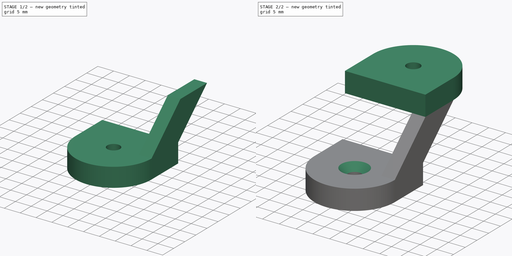
[diagram: build sequence overview — one tinted view per stage of 2, left to right]
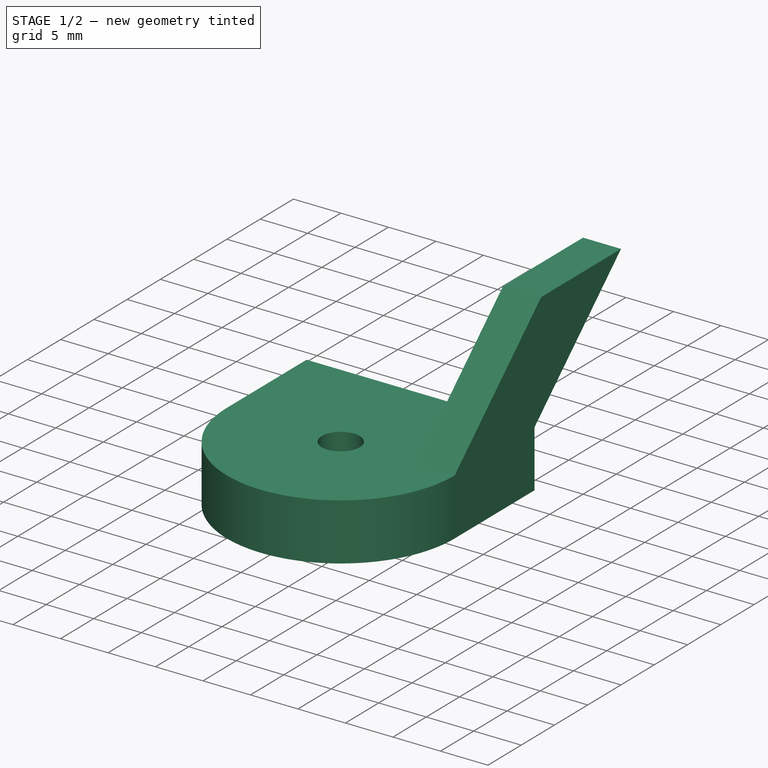
[diagram: stage 1 of 2 — iso view after this stage's code; geometry added in this stage tinted green]
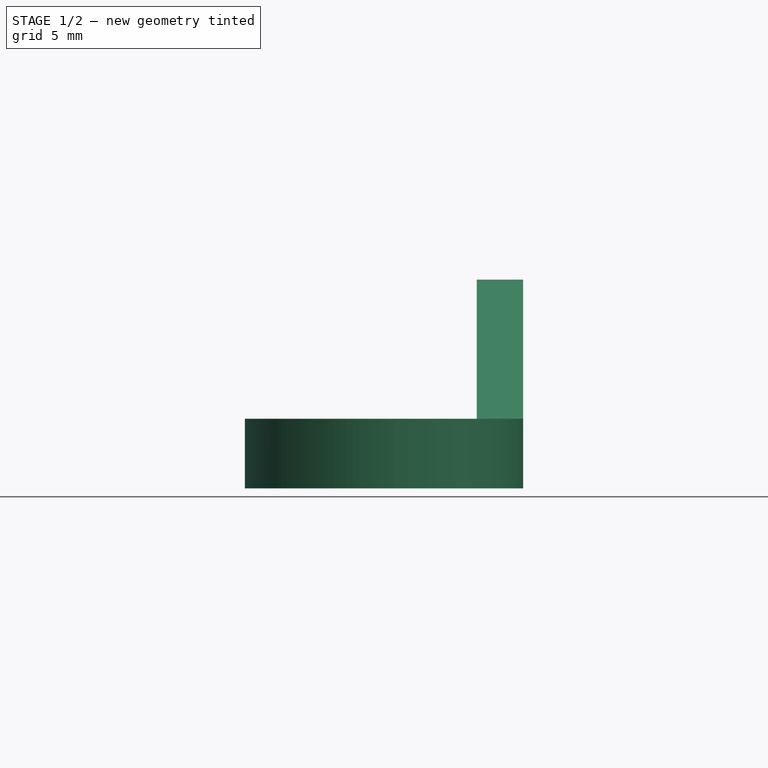
[diagram: stage 1 of 2 — front view after this stage's code; geometry added in this stage tinted green]
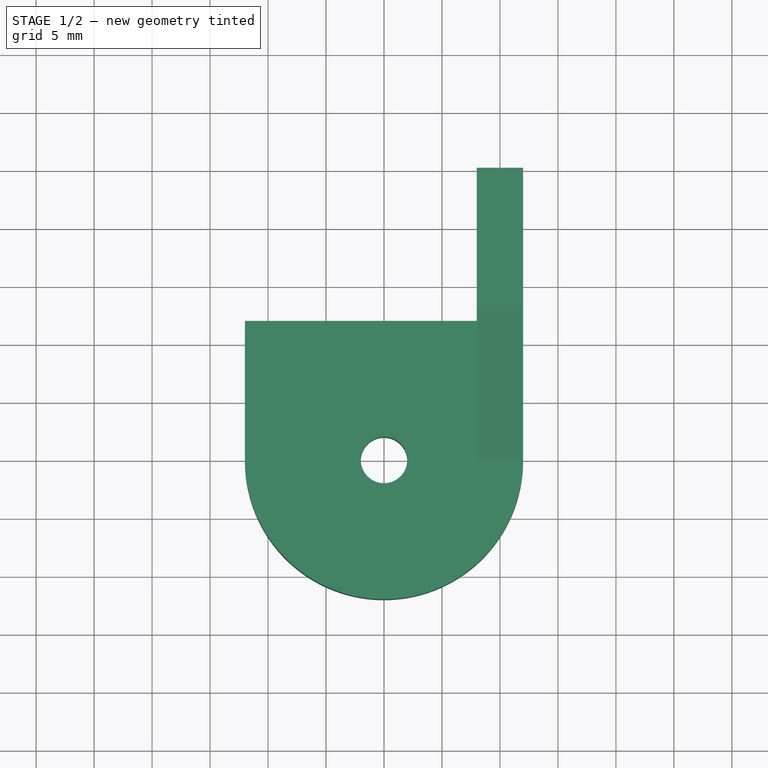
[diagram: stage 1 of 2 — top view after this stage's code; geometry added in this stage tinted green]
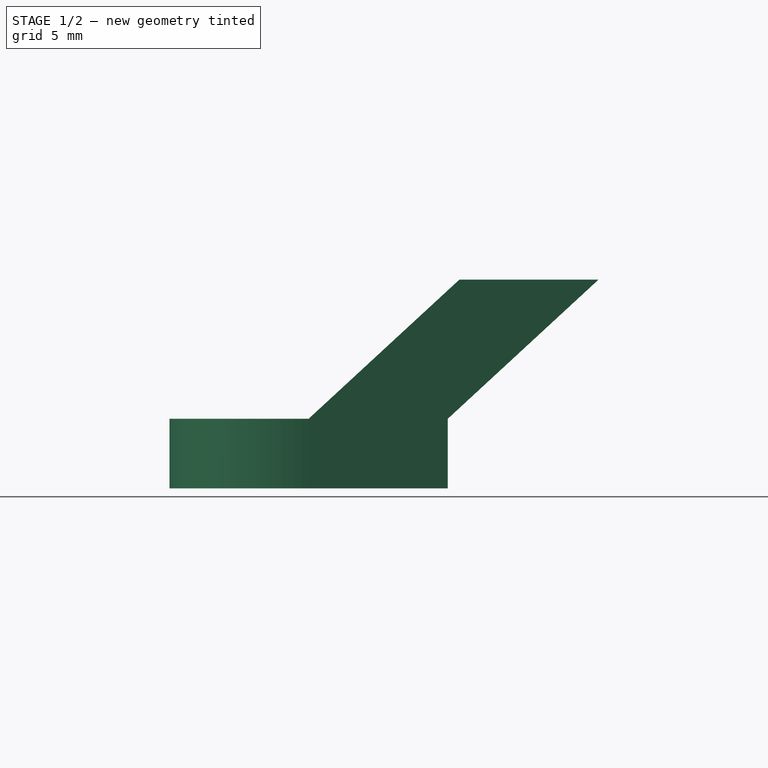
[diagram: stage 1 of 2 — right view after this stage's code; geometry added in this stage tinted green]
FCSTD DOCUMENT  (FreeCAD 0.18R4 (GitTag))
Label: wooferHanger
License: All rights reserved
LicenseURL: http://en.wikipedia.org/wiki/All_rights_reserved
objects: Sketcher::SketchObject×4, PartDesign::Pad×3, PartDesign::Chamfer×1, PartDesign::Body×1, App::Part×1
note: 12 computed .brp shape members not serialized (recipe doc carries the construction recipe); baked Part::Feature solids carry a one-line shape summary decoded from their .brp

FEATURE [Sketcher::SketchObject] Sketch
  MapMode = 5
  Support = -> [XY_Plane]
  sketch-geometry (5):
    g0: LineSegment StartX=-12 StartY=0 StartZ=0 EndX=-12 EndY=12 EndZ=0
    g1: LineSegment StartX=-12 StartY=12 StartZ=0 EndX=12 EndY=12 EndZ=0
    g2: LineSegment StartX=12 StartY=12 StartZ=0 EndX=12 EndY=0 EndZ=0
    g3: ArcOfCircle CenterX=0 CenterY=0 CenterZ=0 NormalX=0 NormalY=0 NormalZ=1 AngleXU=0 Radius=12 StartAngle=3.14159 EndAngle=6.28319
    g4: Circle CenterX=0 CenterY=0 CenterZ=0 NormalX=0 NormalY=0 NormalZ=1 AngleXU=0 Radius=2
  constraints (14):
    c: Coincident(g3,g0)
    c: Coincident(g3,g2)
    c: Coincident(g2,g1)
    c: Coincident(g1,g0)
    c: Horizontal(g0,g3)
    c: Horizontal(g3,g2)
    c: Vertical(g0)
    c: Vertical(g2)
    c: Horizontal(g1)
    c: Coincident(g4,g3)
    c: Radius(g4) = 2
    c: Radius(g3) = 12
    c: DistanceY(g2,g1) = 12
    c: Coincident(g-1,g3)
FEATURE [PartDesign::Pad] Pad
  Length = 6
  Length2 = 100
  Profile = -> Sketch
  Type = 0
FEATURE [Sketcher::SketchObject] Sketch002
  ExternalGeometry = -> [Pad]
  MapMode = 5
  Placement = pos=(12,0,0) rot=(0.57735,0.57735,0.57735;2.0944rad)
  Support = -> [Pad]
  sketch-geometry (4):
    g0: LineSegment StartX=0 StartY=6 StartZ=0 EndX=12.8025 EndY=23.5901 EndZ=0
    g1: LineSegment StartX=12.8025 StartY=23.5901 StartZ=0 EndX=24.8025 EndY=23.5901 EndZ=0
    g2: LineSegment StartX=24.8025 StartY=23.5901 StartZ=0 EndX=12 EndY=6 EndZ=0
    g3: LineSegment StartX=12 StartY=6 StartZ=0 EndX=0 EndY=6 EndZ=0
  constraints (8):
    c: Coincident(g0,g1)
    c: Coincident(g1,g2)
    c: Coincident(g2,g3)
    c: Coincident(g3,g0)
    c: Coincident(g3,g-3)
    c: Coincident(g2,g-3)
    c: Equal(g1,g3)
    c: Horizontal(g1)
FEATURE [Sketcher::SketchObject] Sketch003
  ExternalGeometry = -> [Pad]
  MapMode = 5
  Placement = pos=(12,0,0) rot=(0.57735,0.57735,0.57735;2.0944rad)
  Support = -> [Pad]
  sketch-geometry (4):
    g0: LineSegment StartX=0 StartY=6 StartZ=0 EndX=13 EndY=18 EndZ=0
    g1: LineSegment StartX=13 StartY=18 StartZ=0 EndX=25 EndY=18 EndZ=0
    g2: LineSegment StartX=25 StartY=18 StartZ=0 EndX=12 EndY=6 EndZ=0
    g3: LineSegment StartX=12 StartY=6 StartZ=0 EndX=0 EndY=6 EndZ=0
  constraints (10):
    c: Coincident(g0,g1)
    c: Coincident(g1,g2)
    c: Coincident(g2,g3)
    c: Coincident(g3,g0)
    c: Coincident(g0,g-3)
    c: Coincident(g2,g-3)
    c: Equal(g3,g1)
    c: Horizontal(g1)
    c: DistanceY(g0,g0) = 12
    c: DistanceX(g0,g1) = 25
FEATURE [PartDesign::Pad] Pad001
  BaseFeature = -> Pad
  Length = 4
  Length2 = 100
  Profile = -> Sketch003
  Reversed = true
  Type = 0
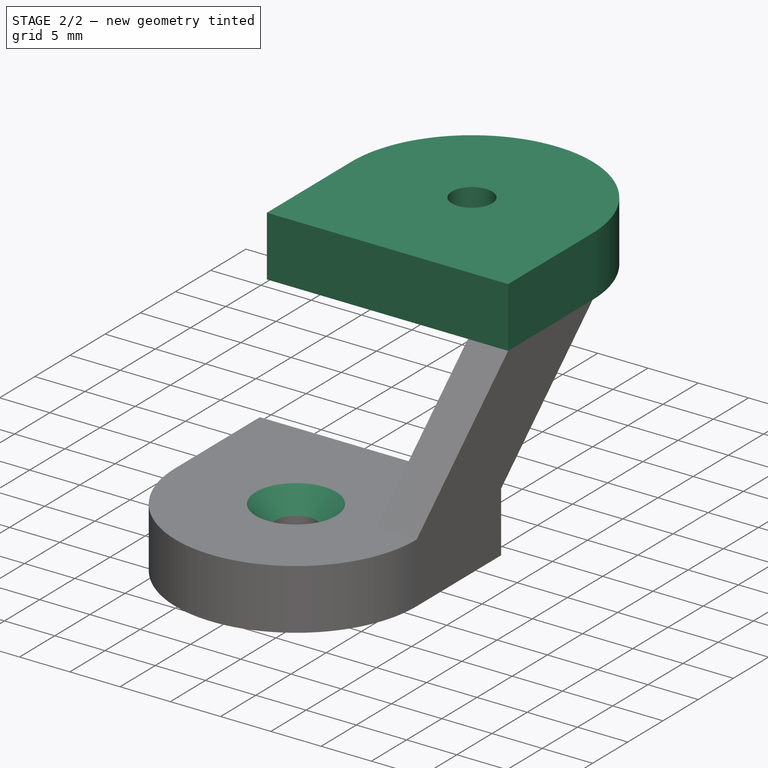
[diagram: stage 2 of 2 — iso view after this stage's code; geometry added in this stage tinted green]
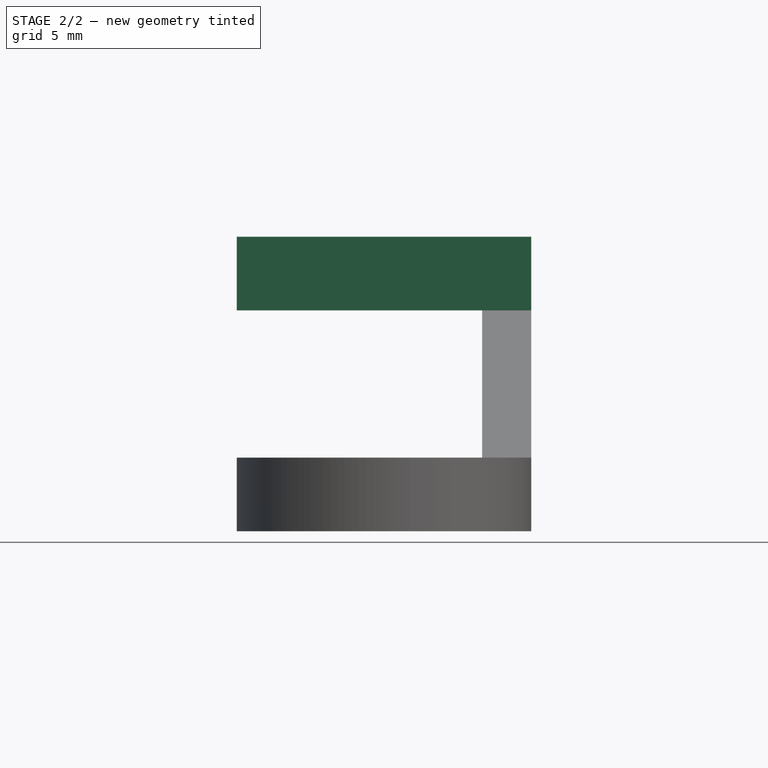
[diagram: stage 2 of 2 — front view after this stage's code; geometry added in this stage tinted green]
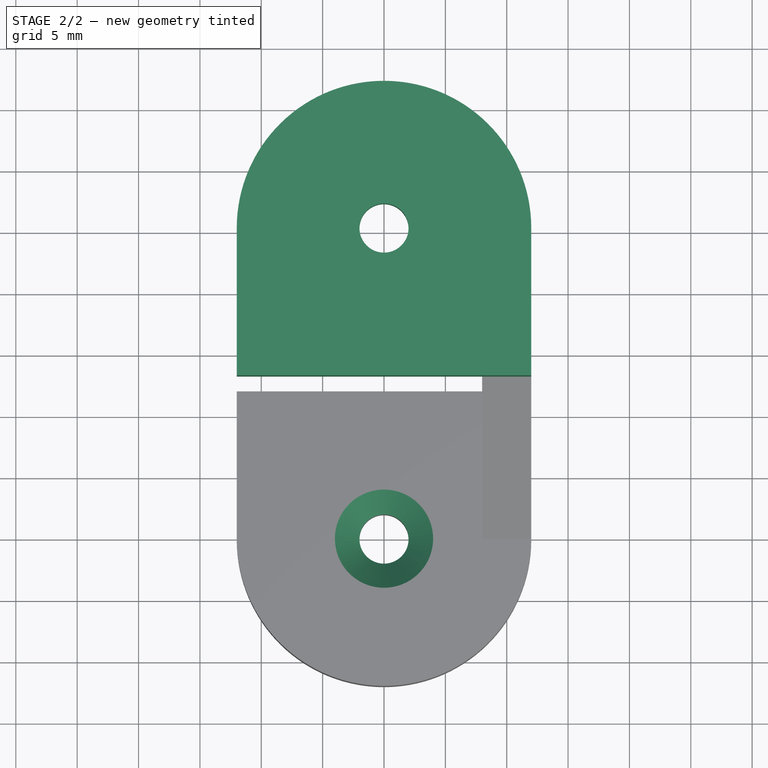
[diagram: stage 2 of 2 — top view after this stage's code; geometry added in this stage tinted green]
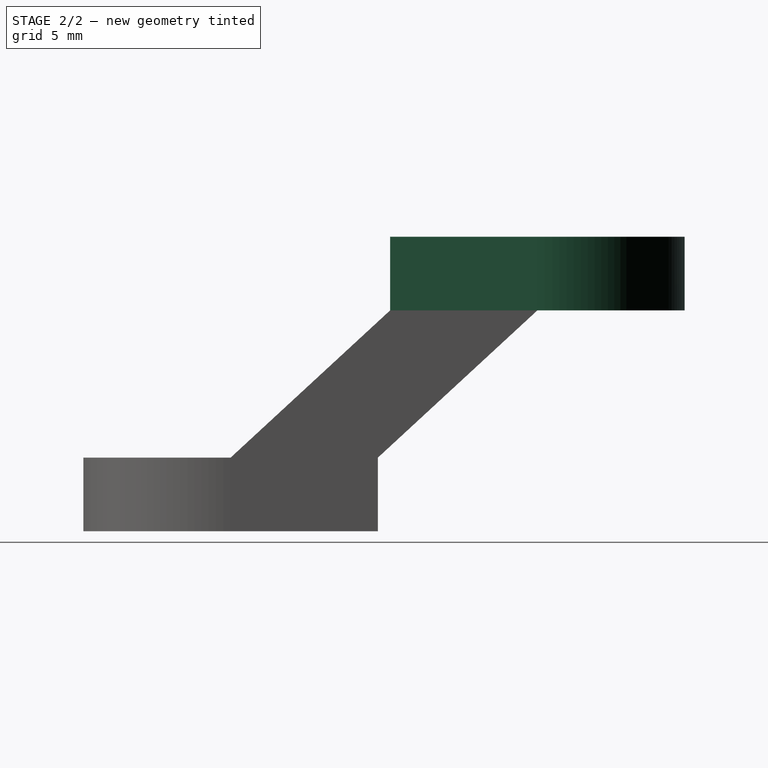
[diagram: stage 2 of 2 — right view after this stage's code; geometry added in this stage tinted green]
FEATURE [Sketcher::SketchObject] Sketch004
  ExternalGeometry = -> [Pad001]
  MapMode = 5
  Placement = pos=(0,0,18) rot=(0,0,1;0rad)
  Support = -> [Pad001]
  sketch-geometry (5):
    g0: LineSegment StartX=12 StartY=25 StartZ=0 EndX=12 EndY=13 EndZ=0
    g1: LineSegment StartX=12 StartY=13 StartZ=0 EndX=-12 EndY=13 EndZ=0
    g2: LineSegment StartX=-12 StartY=13 StartZ=0 EndX=-12 EndY=25 EndZ=0
    g3: Circle CenterX=-8e-16 CenterY=25 CenterZ=0 NormalX=0 NormalY=0 NormalZ=1 AngleXU=0 Radius=2
    g4: ArcOfCircle CenterX=-8e-16 CenterY=25 CenterZ=0 NormalX=0 NormalY=0 NormalZ=1 AngleXU=0 Radius=12 StartAngle=0 EndAngle=3.14159
  constraints (14):
    c: Coincident(g0,g1)
    c: Coincident(g1,g2)
    c: Coincident(g3,g4)
    c: Coincident(g0,g4)
    c: Coincident(g4,g2)
    c: Horizontal(g1)
    c: Vertical(g2)
    c: Vertical(g0)
    c: Horizontal(g0,g3)
    c: Horizontal(g3,g2)
    c: Vertical(g1,g-4)
    c: Equal(g-6,g2)
    c: Coincident(g0,g-5)
    c: Equal(g3,g-3)
FEATURE [PartDesign::Pad] Pad002
  BaseFeature = -> Pad001
  Length = 6
  Length2 = 100
  Profile = -> Sketch004
  Type = 0
FEATURE [PartDesign::Chamfer] Chamfer  label="screwHoles"
  Base = -> Pad002 [Edge16,Edge30]
  BaseFeature = -> Pad002
  Size = 2
FEATURE [PartDesign::Body] Body  label="flap"
  Group = -> [Sketch,Pad,Sketch002,Sketch003,Pad001,Sketch004,Pad002,Chamfer]
  Origin = -> Origin
  Tip = -> Chamfer
FEATURE [App::Part] Part
  Group = -> [Body]
  Origin = -> Origin002
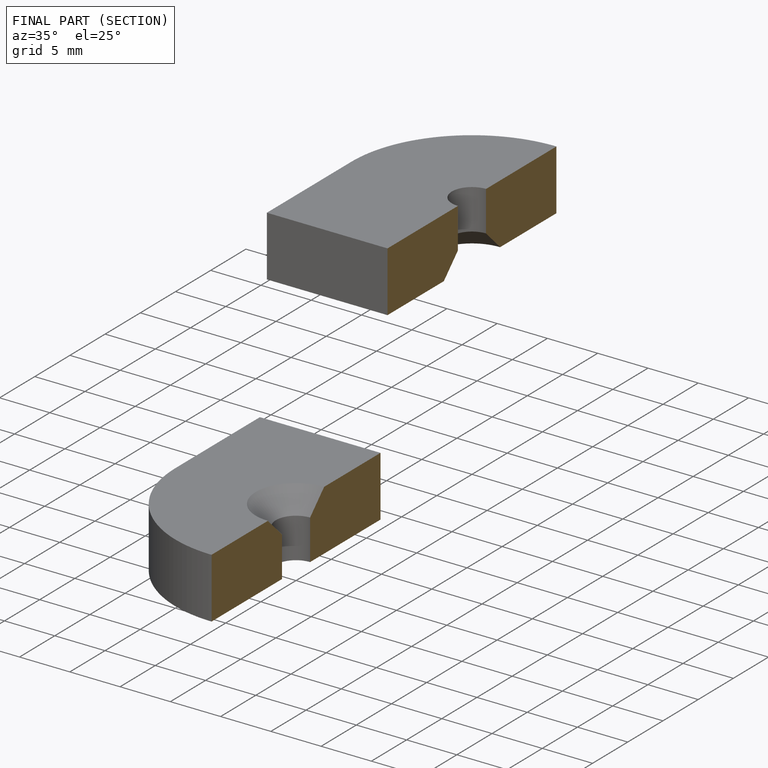
[diagram: finished part — half-section view (interior)]
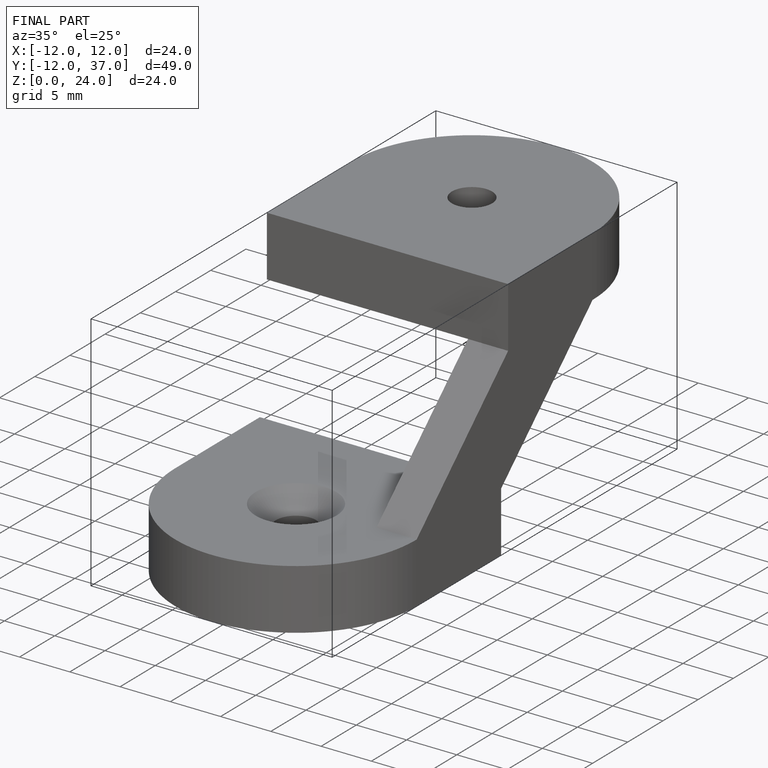
[diagram: finished part — iso view with bounding-box wireframe]
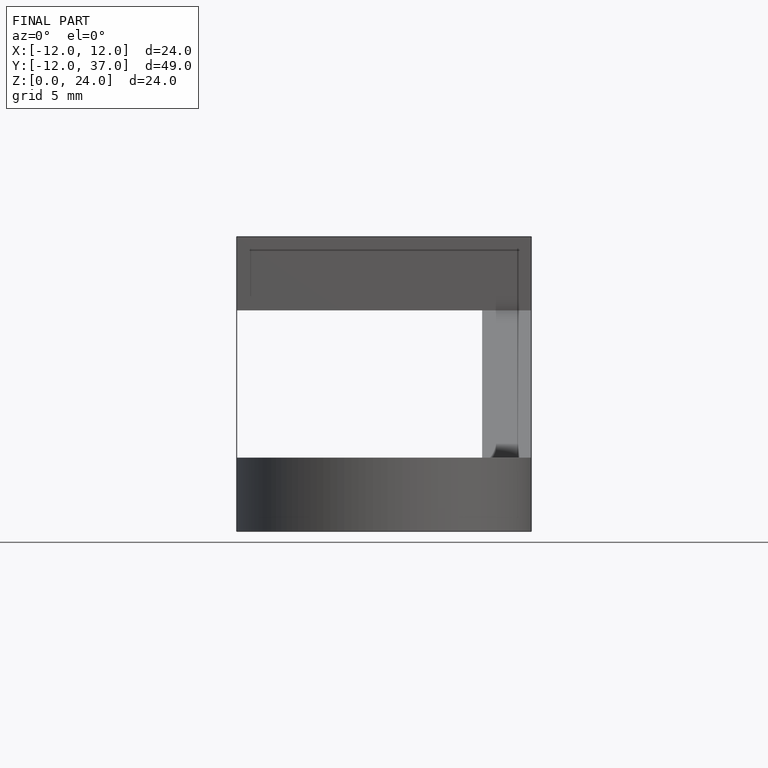
[diagram: finished part — front view with bounding-box wireframe]
